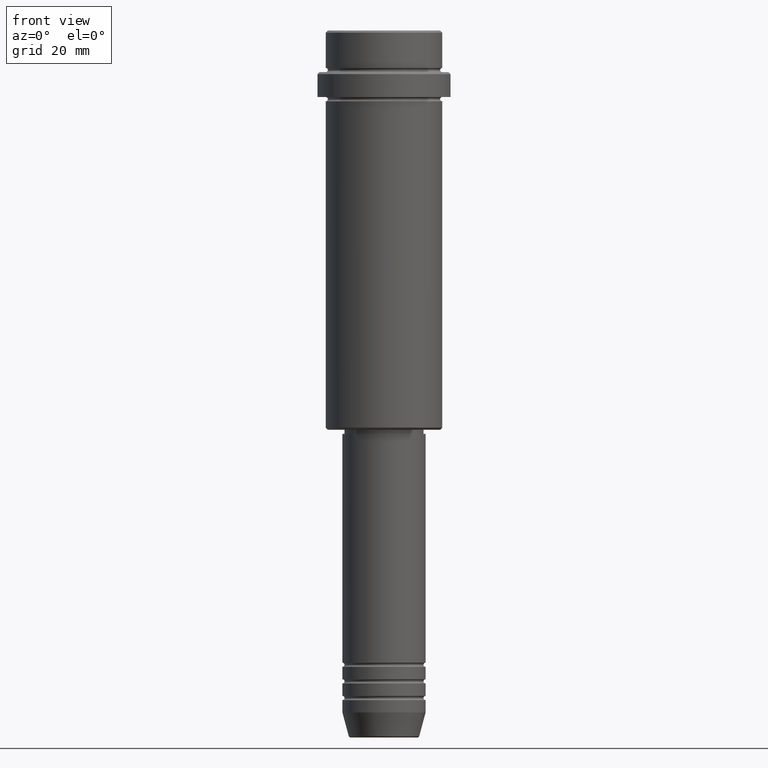
[diagram: clean part render]
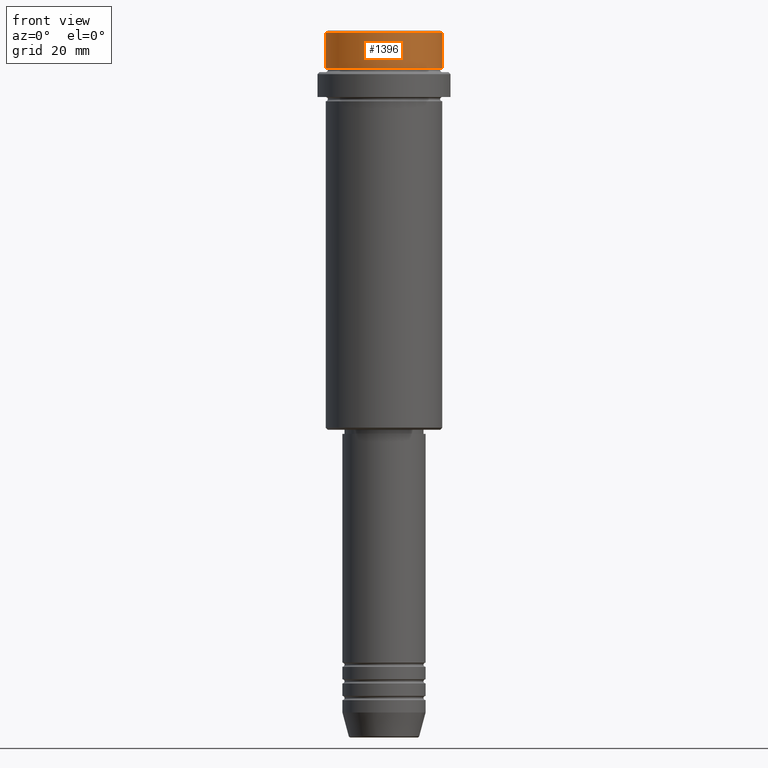
[diagram: same view with one face highlighted and labeled with its STEP entity id]
A machine part, front view. The second image highlights one B-rep face of the part: STEP entity #1396.
In plain terms, the highlighted cylindrical surface (partial cylindrical patch) has radius 14 mm, axis along (-0, -0, 1).
Its self-contained STEP definition (entity closure, byte-faithful):
#8 = AXIS2_PLACEMENT_3D ( 'NONE', #446, #916, #368 ) ;
#94 = VECTOR ( 'NONE', #932, 1000.000000000000000 ) ;
#120 = CIRCLE ( 'NONE', #922, 13.99999999999998934 ) ;
#165 = CARTESIAN_POINT ( 'NONE',  ( -13.99999999999998934, 1.714505518806293257E-15, -0.4999999999999987232 ) ) ;
#193 = CARTESIAN_POINT ( 'NONE',  ( 0.000000000000000000, 0.000000000000000000, -0.4999999999999987232 ) ) ;
#236 = CARTESIAN_POINT ( 'NONE',  ( -13.99999999999997868, 1.714505518806292666E-15, -8.999999999999998224 ) ) ;
#312 = EDGE_CURVE ( 'NONE', #1006, #349, #795, .T. ) ;
#349 = VERTEX_POINT ( 'NONE', #165 ) ;
#368 = DIRECTION ( 'NONE',  ( 1.000000000000000000, 0.000000000000000000, 0.000000000000000000 ) ) ;
#371 = EDGE_CURVE ( 'NONE', #792, #721, #828, .T. ) ;
#421 = DIRECTION ( 'NONE',  ( 0.000000000000000000, 0.000000000000000000, -1.000000000000000000 ) ) ;
#446 = CARTESIAN_POINT ( 'NONE',  ( 0.000000000000000000, 0.000000000000000000, -8.999999999999998224 ) ) ;
#482 = CARTESIAN_POINT ( 'NONE',  ( 13.99999999999998934, 0.000000000000000000, -0.4999999999999987232 ) ) ;
#484 = CARTESIAN_POINT ( 'NONE',  ( 13.99999999999998934, 0.000000000000000000, 0.000000000000000000 ) ) ;
#515 = ORIENTED_EDGE ( 'NONE', *, *, #371, .T. ) ;
#574 = CIRCLE ( 'NONE', #8, 13.99999999999997868 ) ;
#580 = CARTESIAN_POINT ( 'NONE',  ( -13.99999999999998934, 1.714505518806293257E-15, 0.000000000000000000 ) ) ;
#669 = FACE_OUTER_BOUND ( 'NONE', #869, .T. ) ;
#721 = VERTEX_POINT ( 'NONE', #482 ) ;
#722 = CARTESIAN_POINT ( 'NONE',  ( 13.99999999999997868, 0.000000000000000000, -8.999999999999998224 ) ) ;
#754 = CYLINDRICAL_SURFACE ( 'NONE', #1327, 13.99999999999998934 ) ;
#758 = VECTOR ( 'NONE', #1344, 1000.000000000000000 ) ;
#765 = DIRECTION ( 'NONE',  ( 1.000000000000000000, 0.000000000000000000, 0.000000000000000000 ) ) ;
#792 = VERTEX_POINT ( 'NONE', #722 ) ;
#795 = LINE ( 'NONE', #580, #758 ) ;
#816 = ORIENTED_EDGE ( 'NONE', *, *, #1154, .T. ) ;
#828 = LINE ( 'NONE', #484, #94 ) ;
#869 = EDGE_LOOP ( 'NONE', ( #903, #1089, #515, #816 ) ) ;
#903 = ORIENTED_EDGE ( 'NONE', *, *, #312, .F. ) ;
#916 = DIRECTION ( 'NONE',  ( -0.000000000000000000, -0.000000000000000000, 1.000000000000000000 ) ) ;
#922 = AXIS2_PLACEMENT_3D ( 'NONE', #193, #421, #1274 ) ;
#932 = DIRECTION ( 'NONE',  ( -0.000000000000000000, -0.000000000000000000, 1.000000000000000000 ) ) ;
#999 = EDGE_CURVE ( 'NONE', #1006, #792, #574, .T. ) ;
#1006 = VERTEX_POINT ( 'NONE', #236 ) ;
#1089 = ORIENTED_EDGE ( 'NONE', *, *, #999, .T. ) ;
#1154 = EDGE_CURVE ( 'NONE', #721, #349, #120, .T. ) ;
#1189 = DIRECTION ( 'NONE',  ( -0.000000000000000000, -0.000000000000000000, 1.000000000000000000 ) ) ;
#1198 = CARTESIAN_POINT ( 'NONE',  ( 0.000000000000000000, 0.000000000000000000, 0.000000000000000000 ) ) ;
#1274 = DIRECTION ( 'NONE',  ( 1.000000000000000000, 0.000000000000000000, 0.000000000000000000 ) ) ;
#1327 = AXIS2_PLACEMENT_3D ( 'NONE', #1198, #1189, #765 ) ;
#1344 = DIRECTION ( 'NONE',  ( -0.000000000000000000, -0.000000000000000000, 1.000000000000000000 ) ) ;
#1396 = ADVANCED_FACE ( 'NONE', ( #669 ), #754, .T. ) ;